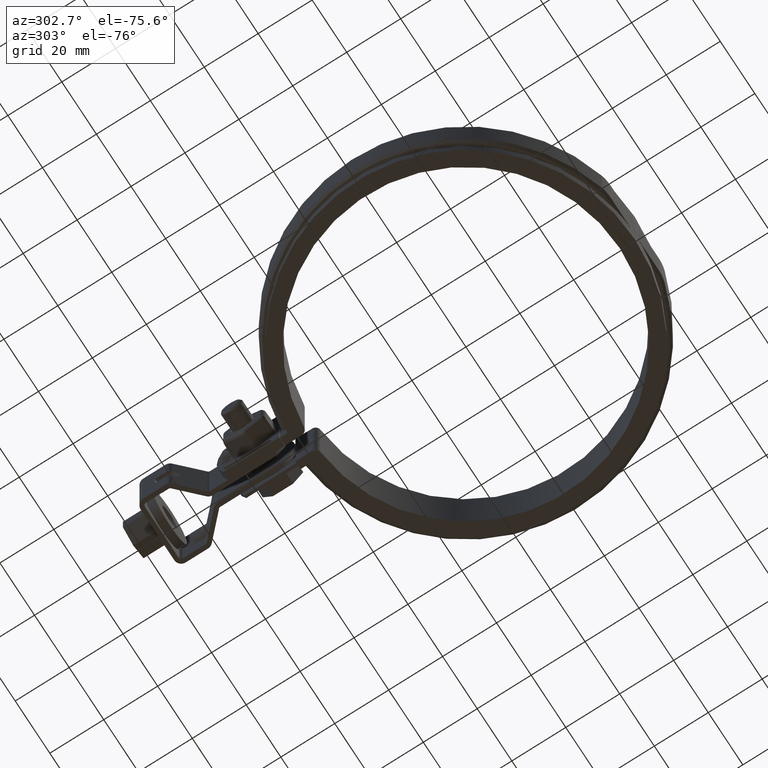
[diagram: clean part render]
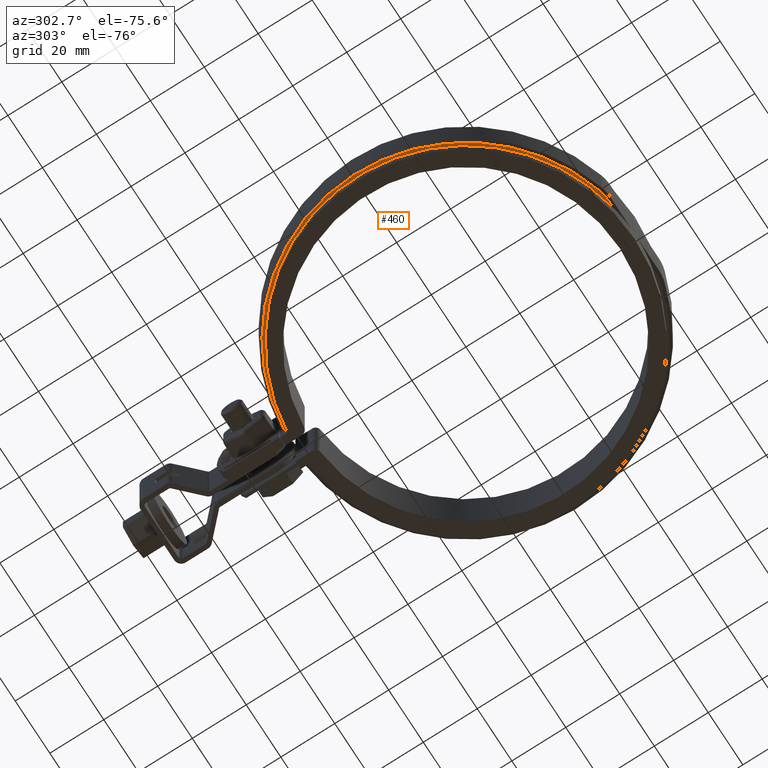
[diagram: same view with one face highlighted and labeled with its STEP entity id]
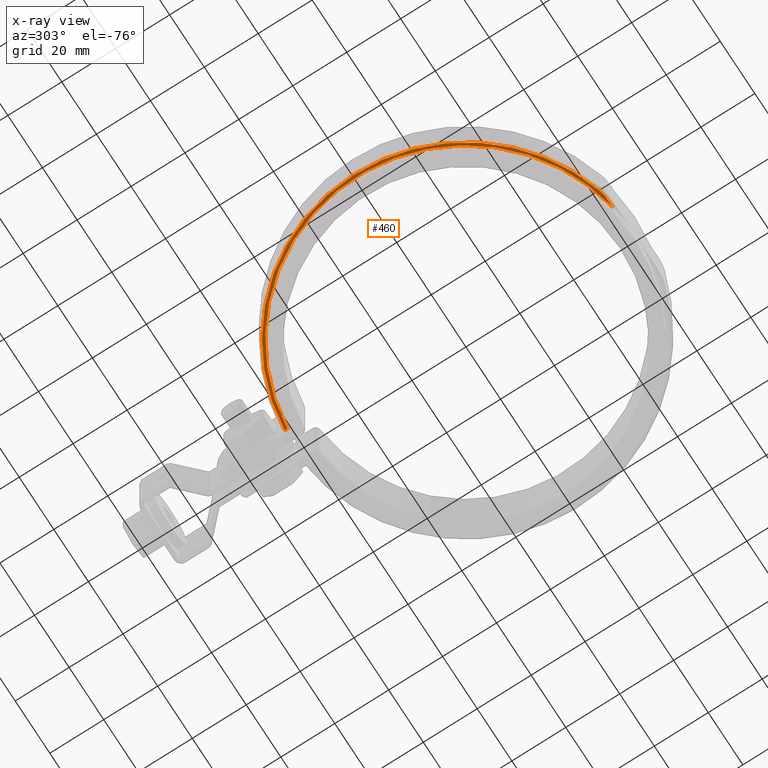
[diagram: x-ray of the same camera — body ghosted, the highlighted face saturated]
A machine part, auxiliary view. The second image highlights one B-rep face of the part: STEP entity #460.
The next image is the same camera in x-ray: the body ghosted, the highlighted face saturated — about 0% of this face is hidden behind the body in this view.
In plain terms, the highlighted planar face has unit normal (0, 0, 1).
Its self-contained STEP definition (entity closure, byte-faithful):
#460 = ADVANCED_FACE( '', ( #897 ), #898, .F. );
#897 = FACE_OUTER_BOUND( '', #2154, .T. );
#898 = PLANE( '', #2155 );
#2154 = EDGE_LOOP( '', ( #4065, #4066, #4067, #4068, #4069 ) );
#2155 = AXIS2_PLACEMENT_3D( '', #4070, #4071, #4072 );
#4065 = ORIENTED_EDGE( '', *, *, #6205, .F. );
#4066 = ORIENTED_EDGE( '', *, *, #6265, .T. );
#4067 = ORIENTED_EDGE( '', *, *, #6269, .T. );
#4068 = ORIENTED_EDGE( '', *, *, #6271, .T. );
#4069 = ORIENTED_EDGE( '', *, *, #6221, .F. );
#4070 = CARTESIAN_POINT( '', ( -4.33680868994202E-015, 5.55111512312578E-014, -8.50000000000000 ) );
#4071 = DIRECTION( '', ( 0.000000000000000, 0.000000000000000, 1.00000000000000 ) );
#4072 = DIRECTION( '', ( -0.0773395204949730, 0.997004813714361, 0.000000000000000 ) );
#6205 = EDGE_CURVE( '', #7267, #7269, #7270, .F. );
#6221 = EDGE_CURVE( '', #7269, #7295, #7296, .T. );
#6265 = EDGE_CURVE( '', #7267, #7366, #7368, .T. );
#6269 = EDGE_CURVE( '', #7366, #7373, #7375, .F. );
#6271 = EDGE_CURVE( '', #7373, #7295, #7377, .F. );
#7267 = VERTEX_POINT( '', #10377 );
#7269 = VERTEX_POINT( '', #10379 );
#7270 = CIRCLE( '', #10380, 62.6500000000000 );
#7295 = VERTEX_POINT( '', #10613 );
#7296 = LINE( '', #10614, #10615 );
#7366 = VERTEX_POINT( '', #10745 );
#7368 = LINE( '', #10748, #10749 );
#7373 = VERTEX_POINT( '', #10756 );
#7375 = CIRCLE( '', #10759, 14.0000000000000 );
#7377 = CIRCLE( '', #10761, 63.6500000000000 );
#10377 = CARTESIAN_POINT( '', ( -11.1489909857355, -61.6499999999999, -8.50000000000000 ) );
#10379 = CARTESIAN_POINT( '', ( -6.00000000000000, 62.3620277091757, -8.50000000000000 ) );
#10380 = AXIS2_PLACEMENT_3D( '', #12600, #12601, #12602 );
#10613 = CARTESIAN_POINT( '', ( -6.00000000000000, 63.3665724179556, -8.50000000000000 ) );
#10614 = CARTESIAN_POINT( '', ( -6.00000000000000, 65.1500000000000, -8.50000000000000 ) );
#10615 = VECTOR( '', #12615, 1000.00000000000 );
#10745 = CARTESIAN_POINT( '', ( -13.9499103939775, -61.6499999999999, -8.50000000000000 ) );
#10748 = CARTESIAN_POINT( '', ( -13.9499103939775, -61.6499999999999, -8.50000000000000 ) );
#10749 = VECTOR( '', #12660, 1000.00000000000 );
#10756 = CARTESIAN_POINT( '', ( -17.8834198706277, -61.0860523665659, -8.50000000000000 ) );
#10759 = AXIS2_PLACEMENT_3D( '', #12664, #12665, #12666 );
#10761 = AXIS2_PLACEMENT_3D( '', #12670, #12671, #12672 );
#12600 = CARTESIAN_POINT( '', ( 8.67361737988404E-016, 0.000000000000000, -8.50000000000000 ) );
#12601 = DIRECTION( '', ( 0.000000000000000, 0.000000000000000, 1.00000000000000 ) );
#12602 = DIRECTION( '', ( 1.00000000000000, 0.000000000000000, 0.000000000000000 ) );
#12615 = DIRECTION( '', ( 6.93889390390723E-017, 1.00000000000000, 0.000000000000000 ) );
#12660 = DIRECTION( '', ( -1.00000000000000, 0.000000000000000, 0.000000000000000 ) );
#12664 = CARTESIAN_POINT( '', ( -13.9499103939775, -47.6499999999999, -8.50000000000000 ) );
#12665 = DIRECTION( '', ( 0.000000000000000, 0.000000000000000, 1.00000000000000 ) );
#12666 = DIRECTION( '', ( 1.00000000000000, 0.000000000000000, 0.000000000000000 ) );
#12670 = CARTESIAN_POINT( '', ( -4.33680868994202E-015, 5.55111512312578E-014, -8.50000000000000 ) );
#12671 = DIRECTION( '', ( 0.000000000000000, 0.000000000000000, 1.00000000000000 ) );
#12672 = DIRECTION( '', ( 1.00000000000000, 0.000000000000000, 0.000000000000000 ) );